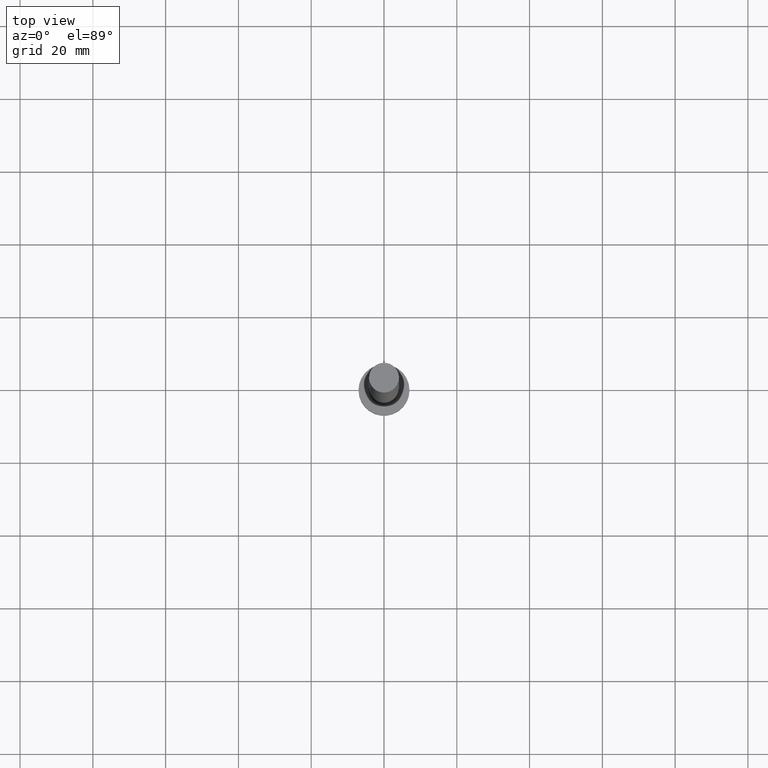
[diagram: clean part render]
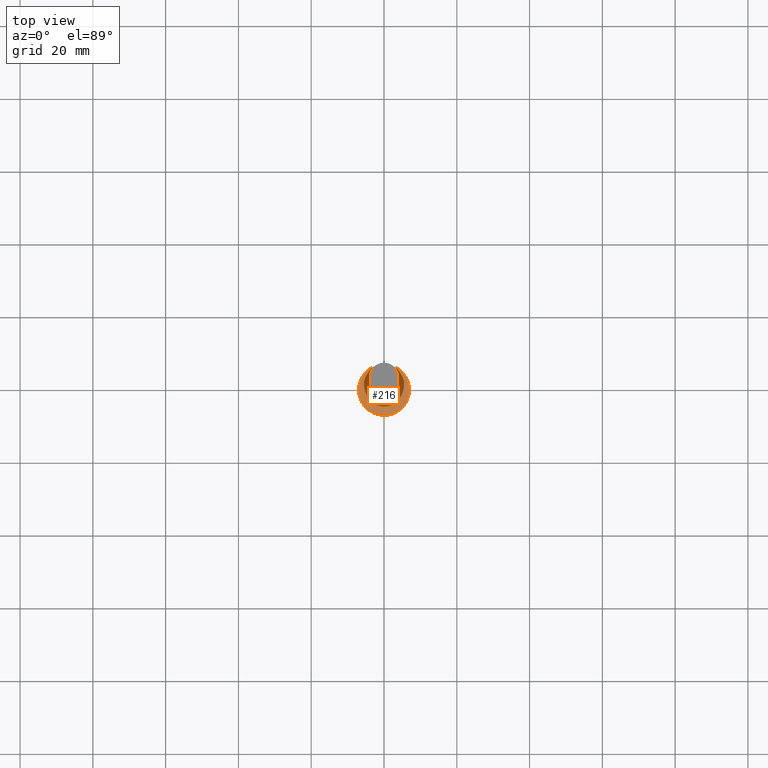
[diagram: same view with one face highlighted and labeled with its STEP entity id]
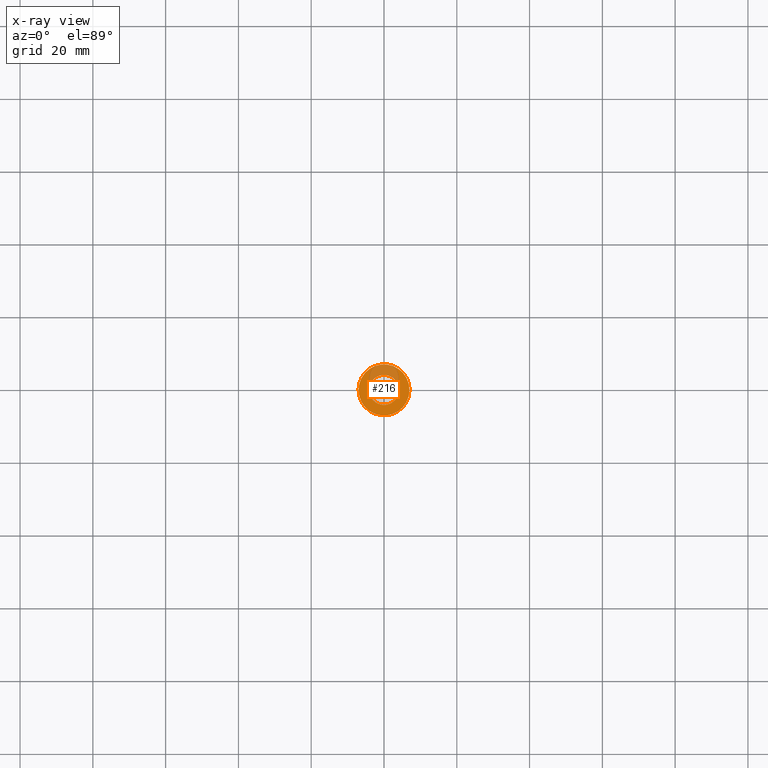
[diagram: x-ray of the same camera — body ghosted, the highlighted face saturated]
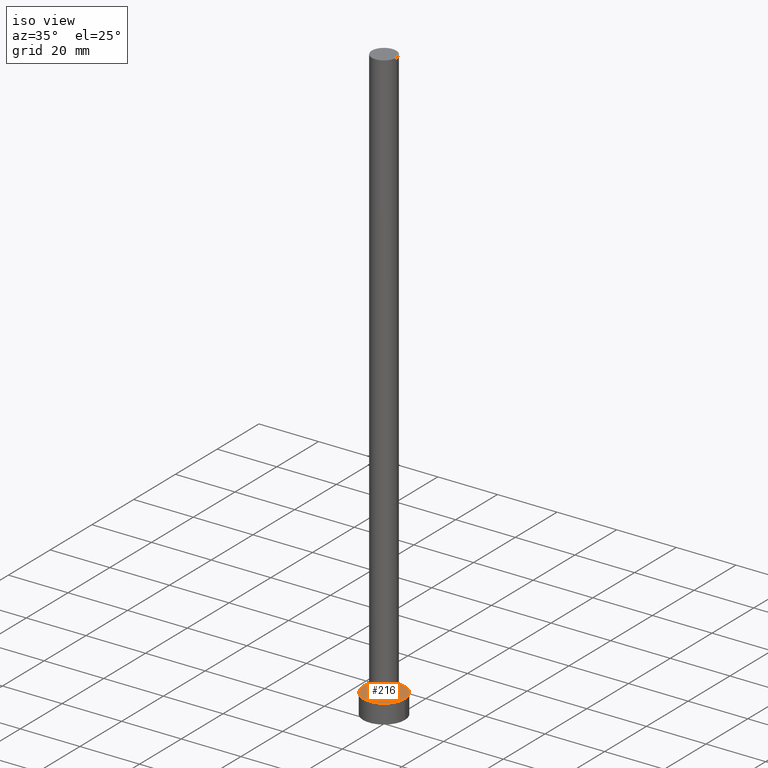
[diagram: same view with one face highlighted and labeled with its STEP entity id]
A machine part, top view. The second image highlights one B-rep face of the part: STEP entity #216.
The next image is the same camera in x-ray: the body ghosted, the highlighted face saturated — about 26% of this face is hidden behind the body in this view.
A second angle (iso view) of the same face is appended — the face is thin or edge-on in the first view.
In plain terms, the highlighted planar face has unit normal (0, 0, 1).
Its self-contained STEP definition (entity closure, byte-faithful):
#8 = CIRCLE ( 'NONE', #166, 7.000000000000000000 ) ;
#9 = ORIENTED_EDGE ( 'NONE', *, *, #19, .F. ) ;
#10 = ORIENTED_EDGE ( 'NONE', *, *, #77, .F. ) ;
#16 = DIRECTION ( 'NONE',  ( 1.000000000000000000, 0.000000000000000000, 0.000000000000000000 ) ) ;
#19 = EDGE_CURVE ( 'NONE', #198, #168, #226, .T. ) ;
#29 = CARTESIAN_POINT ( 'NONE',  ( 0.000000000000000000, 0.000000000000000000, 6.500000000000000000 ) ) ;
#33 = FACE_BOUND ( 'NONE', #223, .T. ) ;
#42 = CIRCLE ( 'NONE', #126, 7.000000000000000000 ) ;
#51 = CARTESIAN_POINT ( 'NONE',  ( 0.000000000000000000, 0.000000000000000000, 6.500000000000000000 ) ) ;
#57 = DIRECTION ( 'NONE',  ( 0.000000000000000000, 0.000000000000000000, 1.000000000000000000 ) ) ;
#58 = CARTESIAN_POINT ( 'NONE',  ( -4.099999999999999645, 0.000000000000000000, 6.500000000000000000 ) ) ;
#68 = VERTEX_POINT ( 'NONE', #203 ) ;
#71 = DIRECTION ( 'NONE',  ( 1.000000000000000000, 0.000000000000000000, -0.000000000000000000 ) ) ;
#73 = DIRECTION ( 'NONE',  ( 0.000000000000000000, 0.000000000000000000, 1.000000000000000000 ) ) ;
#75 = CARTESIAN_POINT ( 'NONE',  ( 0.000000000000000000, 0.000000000000000000, 6.500000000000000000 ) ) ;
#77 = EDGE_CURVE ( 'NONE', #168, #198, #231, .T. ) ;
#94 = EDGE_CURVE ( 'NONE', #68, #244, #42, .T. ) ;
#104 = ORIENTED_EDGE ( 'NONE', *, *, #164, .T. ) ;
#113 = DIRECTION ( 'NONE',  ( 1.000000000000000000, 0.000000000000000000, 0.000000000000000000 ) ) ;
#114 = PLANE ( 'NONE',  #157 ) ;
#126 = AXIS2_PLACEMENT_3D ( 'NONE', #234, #205, #192 ) ;
#130 = EDGE_LOOP ( 'NONE', ( #145, #104 ) ) ;
#145 = ORIENTED_EDGE ( 'NONE', *, *, #94, .T. ) ;
#152 = AXIS2_PLACEMENT_3D ( 'NONE', #29, #73, #113 ) ;
#157 = AXIS2_PLACEMENT_3D ( 'NONE', #75, #171, #71 ) ;
#164 = EDGE_CURVE ( 'NONE', #244, #68, #8, .T. ) ;
#166 = AXIS2_PLACEMENT_3D ( 'NONE', #233, #57, #16 ) ;
#168 = VERTEX_POINT ( 'NONE', #58 ) ;
#170 = FACE_OUTER_BOUND ( 'NONE', #130, .T. ) ;
#171 = DIRECTION ( 'NONE',  ( 0.000000000000000000, 0.000000000000000000, 1.000000000000000000 ) ) ;
#174 = CARTESIAN_POINT ( 'NONE',  ( 4.099999999999999645, 5.021051876504147385E-16, 6.500000000000000000 ) ) ;
#176 = CARTESIAN_POINT ( 'NONE',  ( 7.000000000000000000, 8.572527594031471218E-16, 6.500000000000000000 ) ) ;
#183 = DIRECTION ( 'NONE',  ( 0.000000000000000000, 0.000000000000000000, 1.000000000000000000 ) ) ;
#192 = DIRECTION ( 'NONE',  ( 1.000000000000000000, 0.000000000000000000, 0.000000000000000000 ) ) ;
#198 = VERTEX_POINT ( 'NONE', #174 ) ;
#203 = CARTESIAN_POINT ( 'NONE',  ( -7.000000000000000000, 0.000000000000000000, 6.500000000000000000 ) ) ;
#205 = DIRECTION ( 'NONE',  ( 0.000000000000000000, 0.000000000000000000, 1.000000000000000000 ) ) ;
#216 = ADVANCED_FACE ( 'NONE', ( #33, #170 ), #114, .T. ) ;
#223 = EDGE_LOOP ( 'NONE', ( #10, #9 ) ) ;
#226 = CIRCLE ( 'NONE', #245, 4.099999999999999645 ) ;
#231 = CIRCLE ( 'NONE', #152, 4.099999999999999645 ) ;
#233 = CARTESIAN_POINT ( 'NONE',  ( 0.000000000000000000, 0.000000000000000000, 6.500000000000000000 ) ) ;
#234 = CARTESIAN_POINT ( 'NONE',  ( 0.000000000000000000, 0.000000000000000000, 6.500000000000000000 ) ) ;
#244 = VERTEX_POINT ( 'NONE', #176 ) ;
#245 = AXIS2_PLACEMENT_3D ( 'NONE', #51, #183, #249 ) ;
#249 = DIRECTION ( 'NONE',  ( 1.000000000000000000, 0.000000000000000000, 0.000000000000000000 ) ) ;